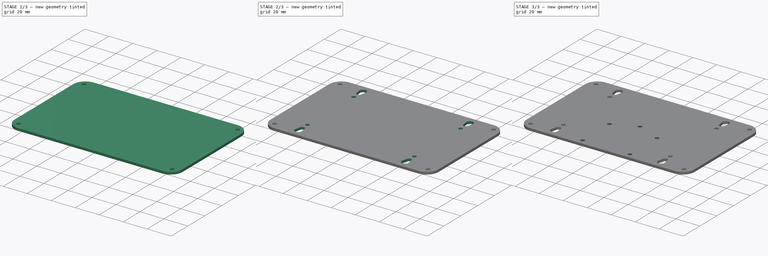
[diagram: build sequence overview — one tinted view per stage of 3, left to right]
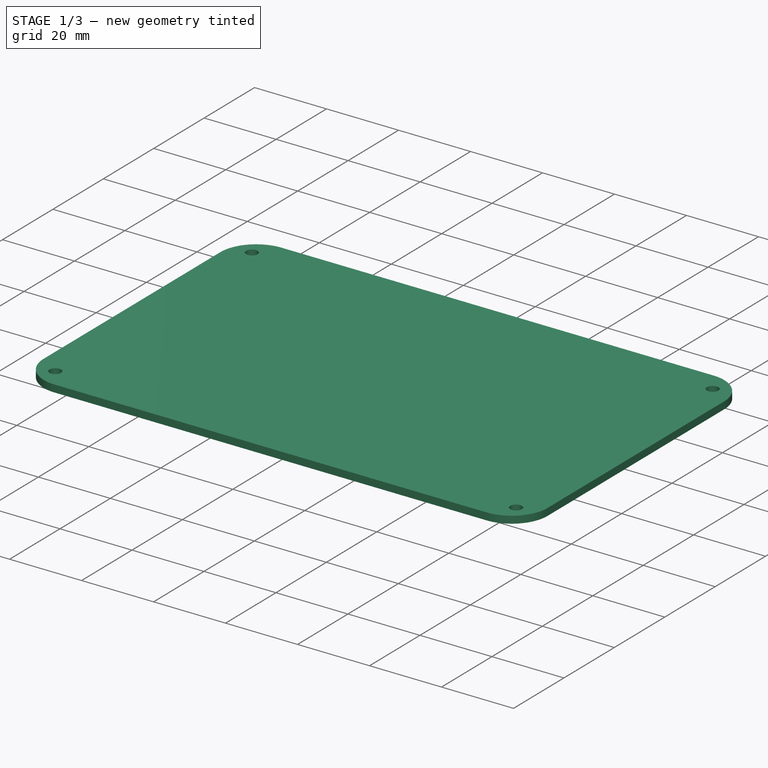
[diagram: stage 1 of 3 — iso view after this stage's code; geometry added in this stage tinted green]
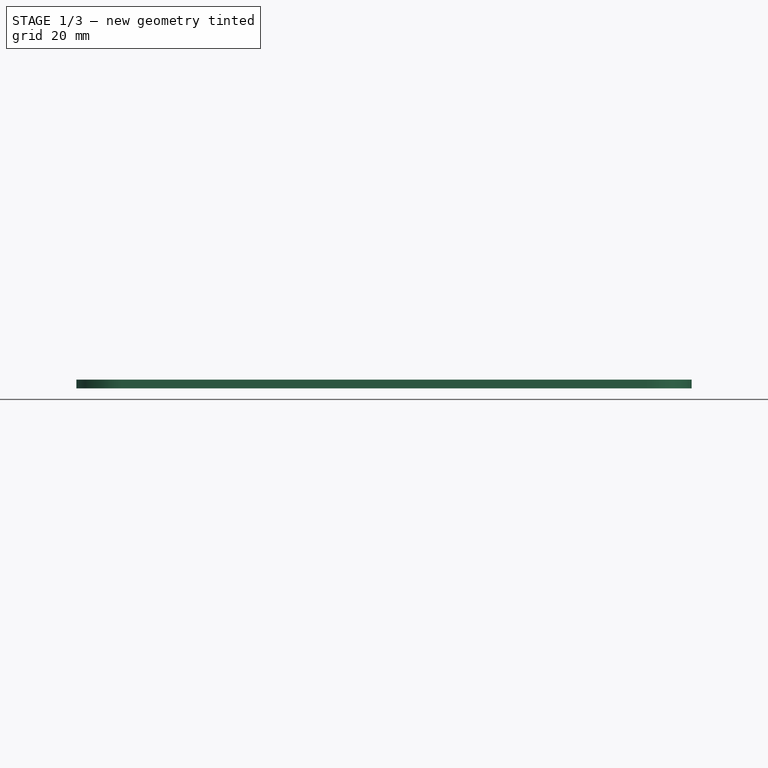
[diagram: stage 1 of 3 — front view after this stage's code; geometry added in this stage tinted green]
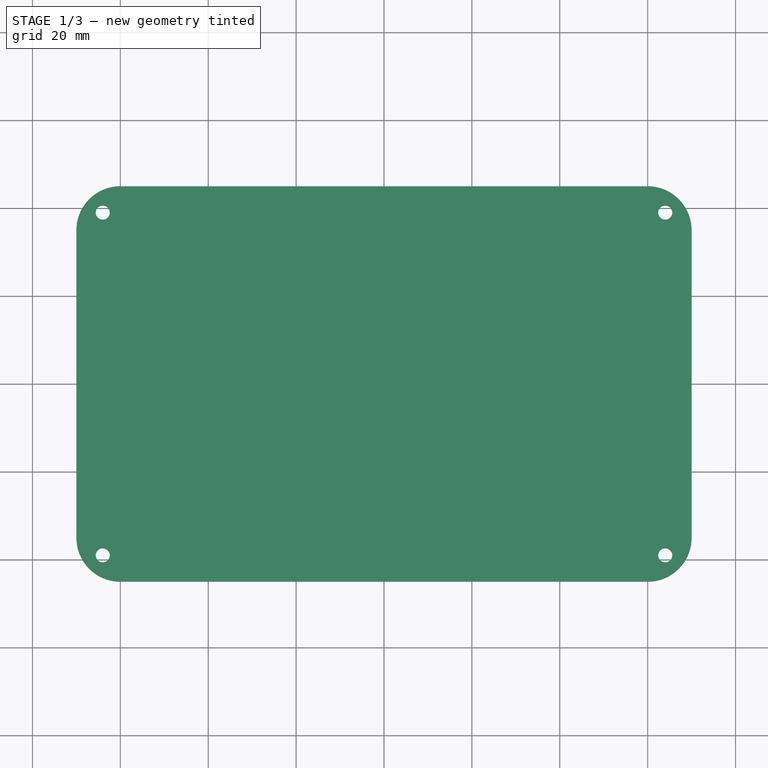
[diagram: stage 1 of 3 — top view after this stage's code; geometry added in this stage tinted green]
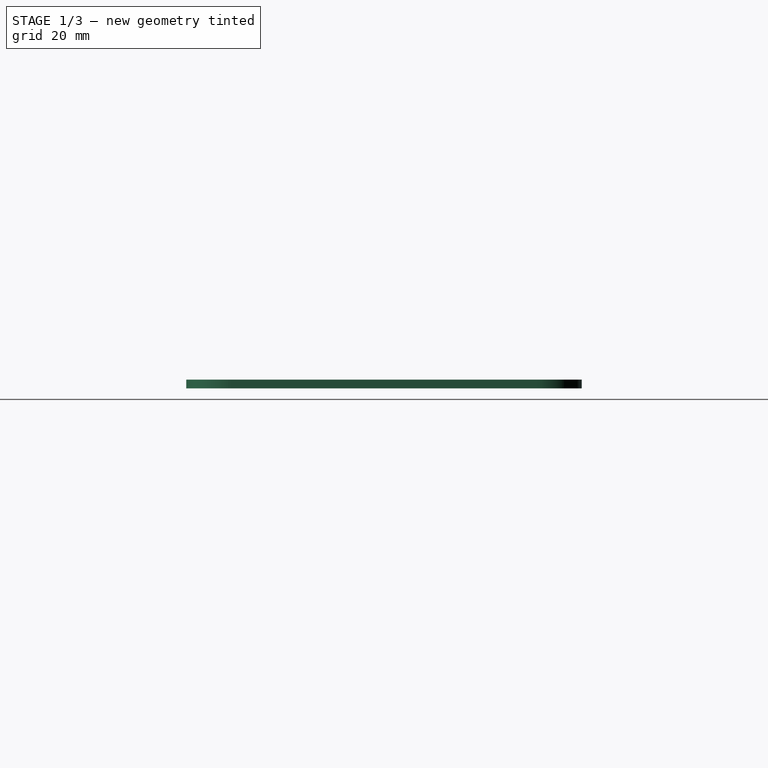
[diagram: stage 1 of 3 — right view after this stage's code; geometry added in this stage tinted green]
FCSTD DOCUMENT  (FreeCAD 0.21R33771 (Git))
Label: Everything_Controller_Backplate
License: All rights reserved
LicenseURL: http://en.wikipedia.org/wiki/All_rights_reserved
objects: Sketcher::SketchObject×3, PartDesign::Fillet×2, PartDesign::Pocket×2, Part::Feature×2, PartDesign::Pad×1, PartDesign::Body×1
note: 16 computed .brp shape members not serialized (recipe doc carries the construction recipe); baked Part::Feature solids carry a one-line shape summary decoded from their .brp

FEATURE [Sketcher::SketchObject] Sketch
  FullyConstrained = true
  MapMode = 5
  Support = -> [XY_Plane]
  sketch-geometry (8):
    g0: LineSegment StartX=-70 StartY=45 StartZ=0 EndX=70 EndY=45 EndZ=0
    g1: LineSegment StartX=70 StartY=45 StartZ=0 EndX=70 EndY=-45 EndZ=0
    g2: LineSegment StartX=70 StartY=-45 StartZ=0 EndX=-70 EndY=-45 EndZ=0
    g3: LineSegment StartX=-70 StartY=-45 StartZ=0 EndX=-70 EndY=45 EndZ=0
    g4: Circle CenterX=-64 CenterY=39 CenterZ=0 NormalX=0 NormalY=0 NormalZ=1 AngleXU=0 Radius=1.6
    g5: Circle CenterX=64 CenterY=39 CenterZ=0 NormalX=0 NormalY=0 NormalZ=1 AngleXU=0 Radius=1.6
    g6: Circle CenterX=64 CenterY=-39 CenterZ=0 NormalX=0 NormalY=0 NormalZ=1 AngleXU=0 Radius=1.6
    g7: Circle CenterX=-64 CenterY=-39 CenterZ=0 NormalX=0 NormalY=0 NormalZ=1 AngleXU=0 Radius=1.6
  constraints (24):
    c: Coincident(g0,g1)
    c: Coincident(g1,g2)
    c: Coincident(g2,g3)
    c: Coincident(g3,g0)
    c: Horizontal(g0)
    c: Horizontal(g2)
    c: Vertical(g1)
    c: Vertical(g3)
    c: DistanceX(g0,g0) = 140
    c: DistanceX(g0,g-1) = 70
    c: DistanceY(g1,g0) = 90
    c: DistanceY(g1,g-1) = 45
    c: Horizontal(g7,g6)
    c: Horizontal(g4,g5)
    c: Vertical(g4,g7)
    c: Vertical(g5,g6)
    c: Diameter(g5) = 3.2
    c: Equal(g5,g6)
    c: Equal(g6,g7)
    c: Equal(g7,g4)
    c: DistanceX(g0,g4) = 6
    c: DistanceX(g5,g0) = 6
    c: DistanceY(g4,g0) = 6
    c: DistanceY(g2,g7) = 6
FEATURE [PartDesign::Pad] Pad
  Direction = (0,0,1)
  Length = 2
  Length2 = 100
  Profile = -> Sketch
  Type = 0
FEATURE [PartDesign::Fillet] Fillet
  Base = -> Pad [Edge8,Edge5,Edge2,Edge1]
  BaseFeature = -> Pad
  Radius = 10
  SupportTransform = false
  UseAllEdges = false
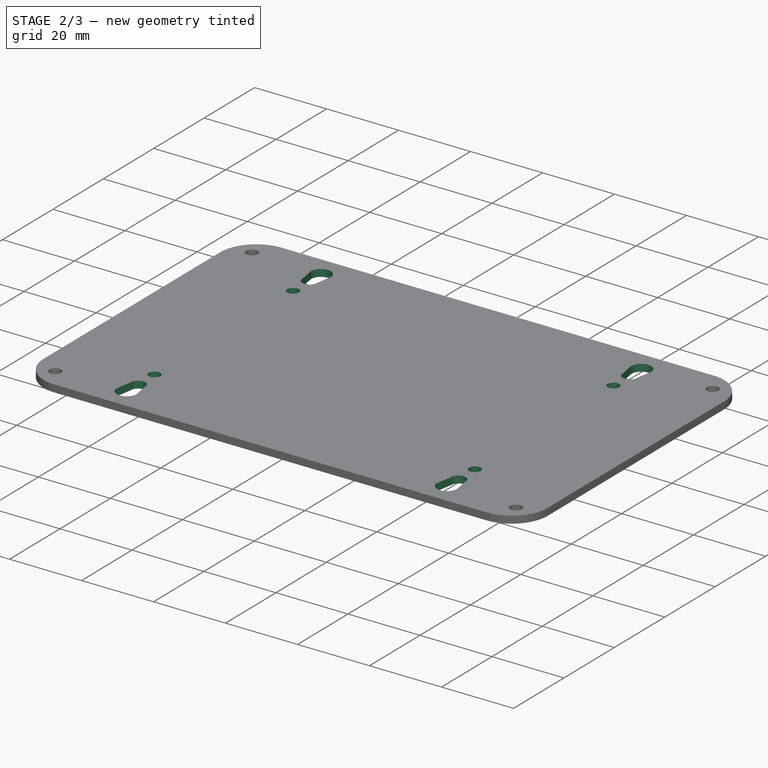
[diagram: stage 2 of 3 — iso view after this stage's code; geometry added in this stage tinted green]
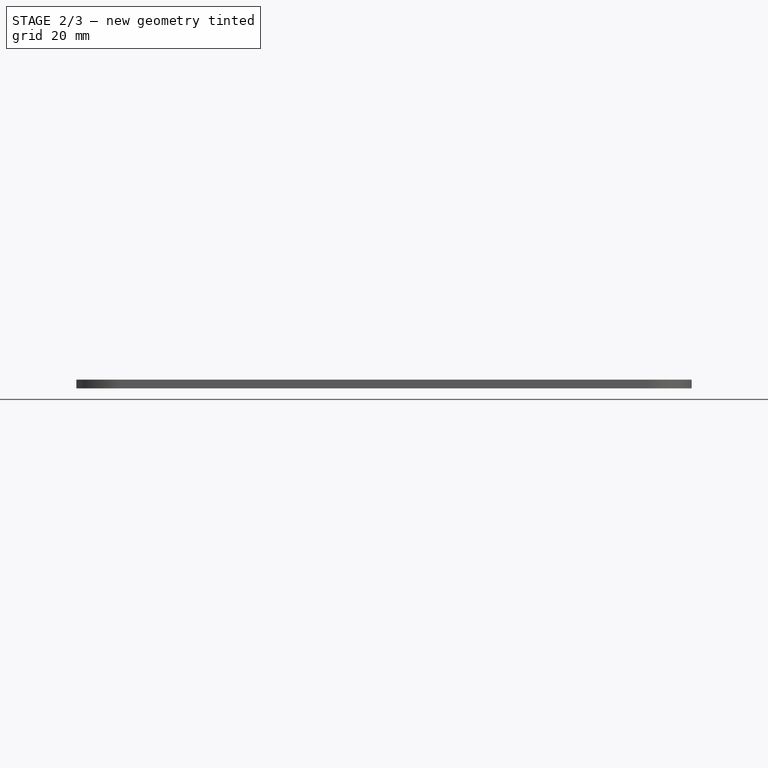
[diagram: stage 2 of 3 — front view after this stage's code; geometry added in this stage tinted green]
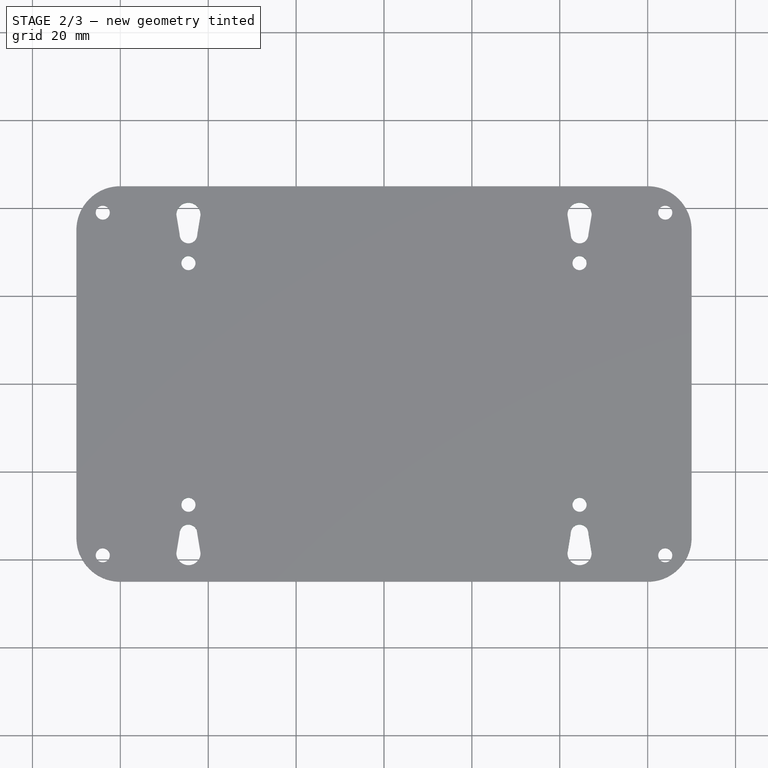
[diagram: stage 2 of 3 — top view after this stage's code; geometry added in this stage tinted green]
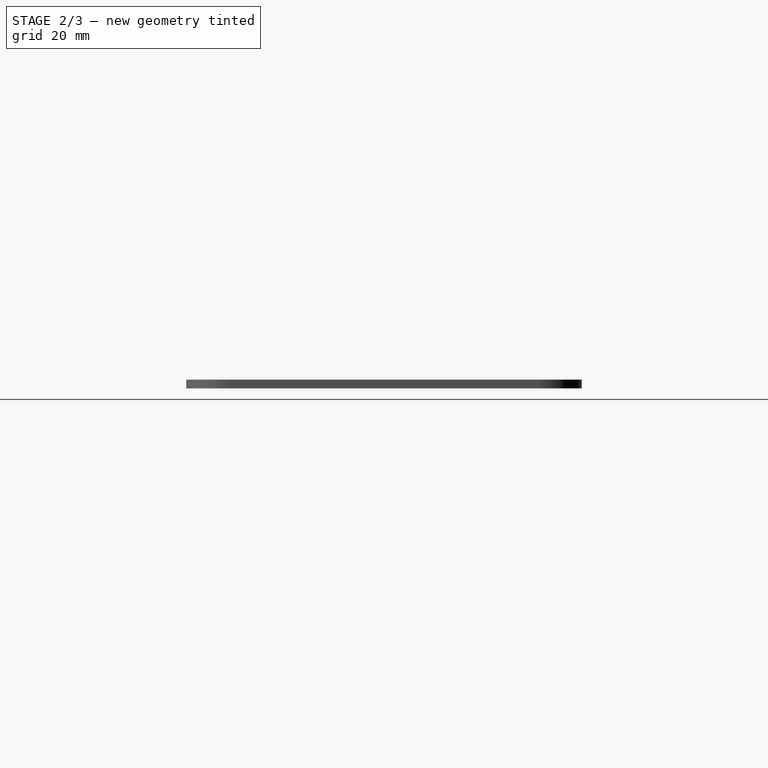
[diagram: stage 2 of 3 — right view after this stage's code; geometry added in this stage tinted green]
FEATURE [Sketcher::SketchObject] Sketch001
  ExternalGeometry = -> [Fillet]
  FullyConstrained = true
  MapMode = 5
  Placement = pos=(0,0,2) rot=(0,0,1;0rad)
  Support = -> [Fillet]
  sketch-geometry (29):
    g0: LineSegment StartX=-55 StartY=38.5 StartZ=0 EndX=-34 EndY=38.5 EndZ=0
    g1: LineSegment StartX=-34 StartY=38.5 StartZ=0 EndX=-34 EndY=-38.5 EndZ=0
    g2: LineSegment StartX=-34 StartY=-38.5 StartZ=0 EndX=-55 EndY=-38.5 EndZ=0
    g3: LineSegment StartX=-55 StartY=-38.5 StartZ=0 EndX=-55 EndY=38.5 EndZ=0
    g4: LineSegment StartX=34 StartY=38.5 StartZ=0 EndX=55 EndY=38.5 EndZ=0
    g5: LineSegment StartX=55 StartY=38.5 StartZ=0 EndX=55 EndY=-38.5 EndZ=0
    g6: LineSegment StartX=55 StartY=-38.5 StartZ=0 EndX=34 EndY=-38.5 EndZ=0
    g7: LineSegment StartX=34 StartY=-38.5 StartZ=0 EndX=34 EndY=38.5 EndZ=0
    g8: Circle CenterX=-44.5 CenterY=27.5 CenterZ=0 NormalX=0 NormalY=0 NormalZ=1 AngleXU=0 Radius=1.6
    g9: Circle CenterX=-44.5 CenterY=-27.5 CenterZ=0 NormalX=0 NormalY=0 NormalZ=1 AngleXU=0 Radius=1.6
    g10: Circle CenterX=44.5 CenterY=-27.5 CenterZ=0 NormalX=0 NormalY=0 NormalZ=1 AngleXU=0 Radius=1.6
    g11: Circle CenterX=44.5 CenterY=27.5 CenterZ=0 NormalX=0 NormalY=0 NormalZ=1 AngleXU=0 Radius=1.6
    g12: GeomPoint X=-44.5 Y=29.1 Z=0
    g13: ArcOfCircle CenterX=-44.5 CenterY=38.5 CenterZ=0 NormalX=0 NormalY=0 NormalZ=1 AngleXU=0 Radius=2.75 StartAngle=-1.8e-15 EndAngle=3.14159
    g14: ArcOfCircle CenterX=-44.5 CenterY=34 CenterZ=0 NormalX=0 NormalY=0 NormalZ=1 AngleXU=0 Radius=2 StartAngle=3.14159 EndAngle=6.28319
    g15: LineSegment StartX=-46.5 StartY=34 StartZ=0 EndX=-47.25 EndY=38.5 EndZ=0
    g16: LineSegment StartX=-42.5 StartY=34 StartZ=0 EndX=-41.75 EndY=38.5 EndZ=0
    g17: ArcOfCircle CenterX=-44.5 CenterY=-38.5 CenterZ=0 NormalX=0 NormalY=0 NormalZ=1 AngleXU=0 Radius=2.75 StartAngle=3.14159 EndAngle=6.28319
    g18: ArcOfCircle CenterX=-44.5 CenterY=-34 CenterZ=0 NormalX=0 NormalY=0 NormalZ=1 AngleXU=0 Radius=2 StartAngle=0 EndAngle=3.14159
    g19: LineSegment StartX=-41.75 StartY=-38.5 StartZ=0 EndX=-42.5 EndY=-34 EndZ=0
    g20: LineSegment StartX=-46.5 StartY=-34 StartZ=0 EndX=-47.25 EndY=-38.5 EndZ=0
    g21: LineSegment StartX=46.5 StartY=34 StartZ=0 EndX=47.25 EndY=38.5 EndZ=0
    g22: ArcOfCircle CenterX=44.5 CenterY=34 CenterZ=0 NormalX=0 NormalY=0 NormalZ=1 AngleXU=0 Radius=2 StartAngle=3.14159 EndAngle=6.28319
    g23: LineSegment StartX=42.5 StartY=34 StartZ=0 EndX=41.75 EndY=38.5 EndZ=0
    g24: ArcOfCircle CenterX=44.5 CenterY=38.5 CenterZ=0 NormalX=0 NormalY=0 NormalZ=1 AngleXU=0 Radius=2.75 StartAngle=0 EndAngle=3.14159
    g25: ArcOfCircle CenterX=44.5 CenterY=-34 CenterZ=0 NormalX=0 NormalY=0 NormalZ=1 AngleXU=0 Radius=2 StartAngle=0 EndAngle=3.14159
    g26: LineSegment StartX=47.25 StartY=-38.5 StartZ=0 EndX=46.5 EndY=-34 EndZ=0
    g27: ArcOfCircle CenterX=44.5 CenterY=-38.5 CenterZ=0 NormalX=0 NormalY=0 NormalZ=1 AngleXU=0 Radius=2.75 StartAngle=3.14159 EndAngle=6.28319
    g28: LineSegment StartX=42.5 StartY=-34 StartZ=0 EndX=41.75 EndY=-38.5 EndZ=0
  constraints (94):
    c: Coincident(g0,g1)
    c: Coincident(g1,g2)
    c: Coincident(g2,g3)
    c: Coincident(g3,g0)
    c: Horizontal(g0)
    c: Horizontal(g2)
    c: Vertical(g1)
    c: Vertical(g3)
    c: Coincident(g4,g5)
    c: Coincident(g5,g6)
    c: Coincident(g6,g7)
    c: Coincident(g7,g4)
    c: Horizontal(g4)
    c: Horizontal(g6)
    c: Vertical(g5)
    c: Vertical(g7)
    c: DistanceX(g0,g0) = 21
    c: DistanceX(g4,g4) = 21
    c: DistanceY(g1,g1) = 77
    c: DistanceY(g-1,g0) = 38.5
    c: Horizontal(g4,g0)
    c: Horizontal(g6,g1)
    c: DistanceX(g-3,g0) = 15
    c: DistanceX(g4,g-4) = 15
    c: Horizontal(g11,g8)
    c: Horizontal(g10,g9)
    c: Vertical(g8,g9)
    c: Vertical(g11,g10)
    c: Diameter(g11) = 3.2
    c: Equal(g11,g8)
    c: Equal(g8,g9)
    c: Equal(g9,g10)
    c: DistanceX(g4,g11) = 10.5
    c: DistanceX(g0,g8) = 10.5
    c: DistanceY(g10,g11) = 55
    c: DistanceY(g-1,g11) = 27.5
    c: PointOnObject(g12,g8)
    c: Vertical(g12,g8)
    c: PointOnObject(g13,g0)
    c: PointOnObject(g13,g0)
    c: PointOnObject(g13,g0)
    c: Diameter(g13) = 5.5
    c: Vertical(g13,g8)
    c: Coincident(g15,g14)
    c: Coincident(g15,g13)
    c: Coincident(g16,g14)
    c: Coincident(g16,g13)
    c: Vertical(g14,g13)
    c: Horizontal(g14,g14)
    c: Horizontal(g14,g14)
    c: Diameter(g14) = 4
    c: DistanceY(g14,g13) = 4.5
    c: PointOnObject(g17,g2)
    c: PointOnObject(g17,g2)
    c: PointOnObject(g17,g2)
    c: Horizontal(g18,g18)
    c: Horizontal(g18,g18)
    c: Vertical(g18,g17)
    c: Vertical(g17,g9)
    c: Coincident(g19,g17)
    c: Coincident(g19,g18)
    c: Coincident(g20,g18)
    c: Coincident(g20,g17)
    c: Diameter(g17) = 5.5
    c: Diameter(g18) = 4
    c: DistanceY(g17,g18) = 4.5
    c: Equal(g13,g24) = 5.5
    c: Coincident(g23,g22)
    c: Coincident(g23,g24)
    c: Coincident(g21,g22)
    c: Coincident(g21,g24)
    c: Vertical(g22,g24)
    c: Horizontal(g22,g22)
    c: Horizontal(g22,g22)
    c: Equal(g14,g22) = 4
    c: DistanceY(g22,g24) = 4.5
    c: Horizontal(g25,g25)
    c: Horizontal(g25,g25)
    c: Vertical(g25,g27)
    c: Coincident(g26,g27)
    c: Coincident(g26,g25)
    c: Coincident(g28,g25)
    c: Coincident(g28,g27)
    c: Equal(g17,g27) = 5.5
    c: Equal(g18,g25) = 4
    c: DistanceY(g27,g25) = 4.5
    c: PointOnObject(g27,g6)
    c: Vertical(g27,g10)
    c: Horizontal(g26,g27)
    c: Horizontal(g27,g27)
    c: Horizontal(g24,g23)
    c: Horizontal(g23,g21)
    c: PointOnObject(g24,g4)
    c: Vertical(g24,g11)
FEATURE [PartDesign::Pocket] Pocket
  BaseFeature = -> Fillet
  Direction = (0,0,-1)
  Length = 2
  Length2 = 100
  Profile = -> Sketch001
  Type = 0
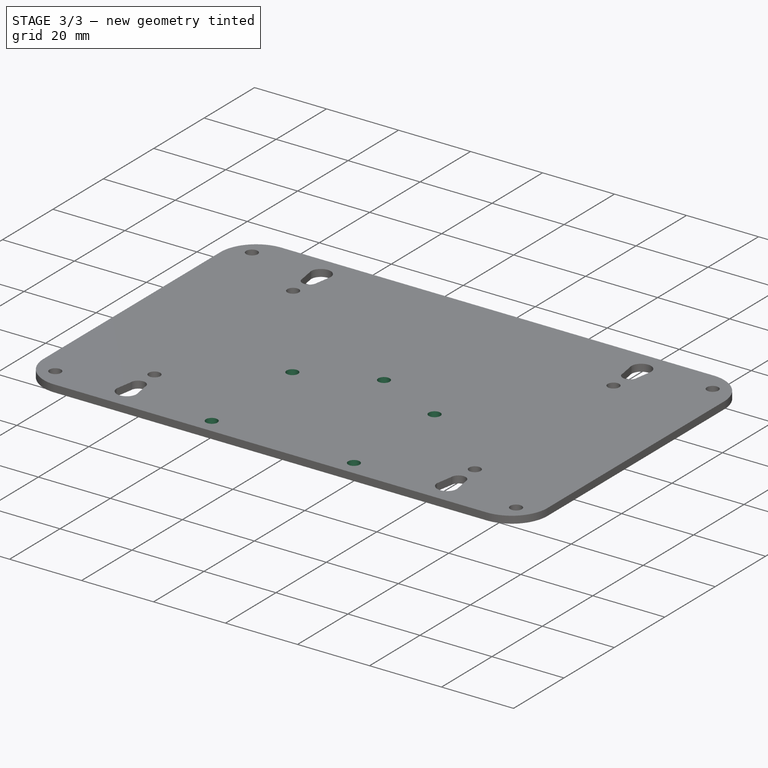
[diagram: stage 3 of 3 — iso view after this stage's code; geometry added in this stage tinted green]
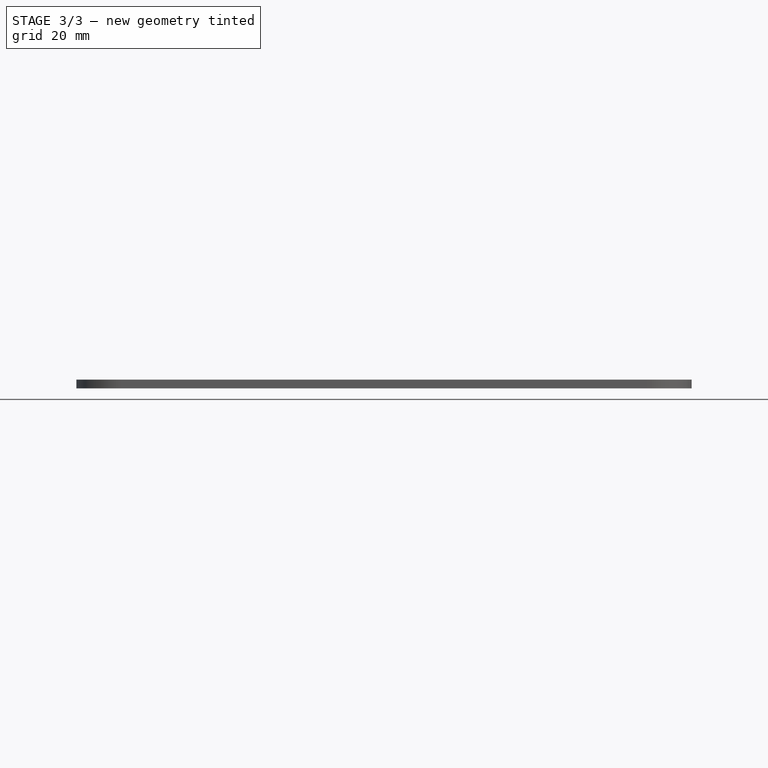
[diagram: stage 3 of 3 — front view after this stage's code; geometry added in this stage tinted green]
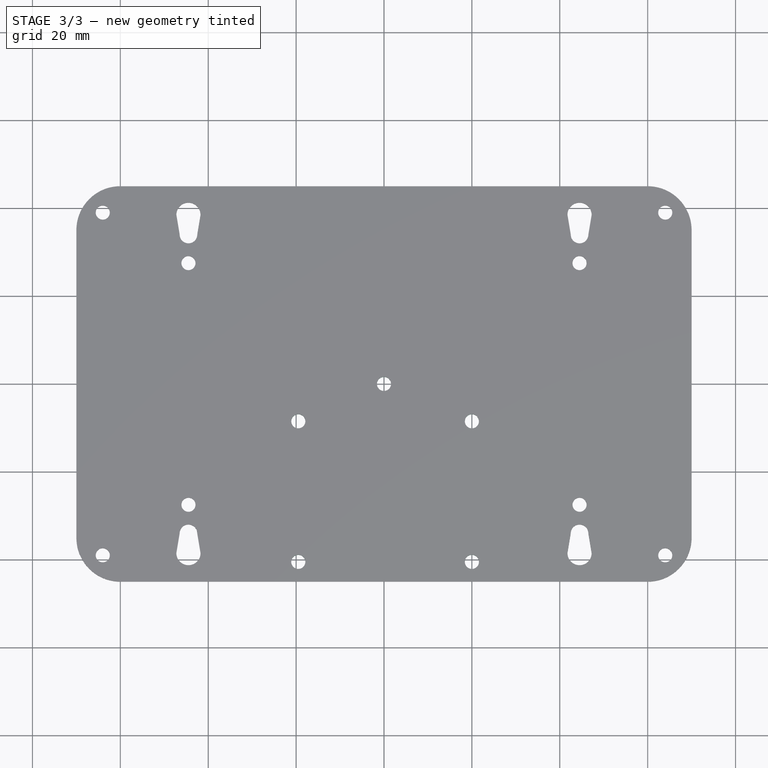
[diagram: stage 3 of 3 — top view after this stage's code; geometry added in this stage tinted green]
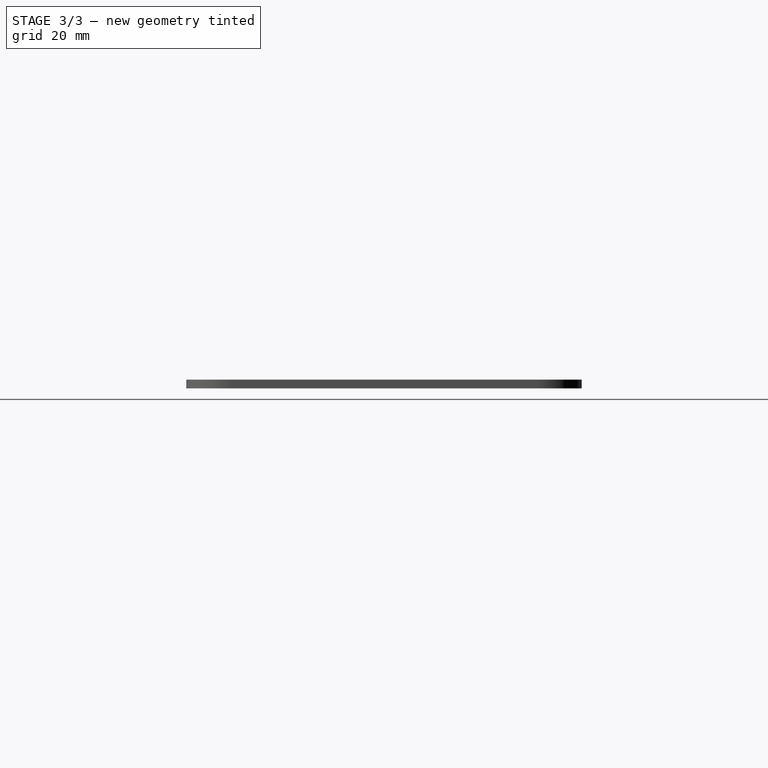
[diagram: stage 3 of 3 — right view after this stage's code; geometry added in this stage tinted green]
FEATURE [Part::Feature] Feature  label="Hold_18650-1p"
  Placement = pos=(-44.5,0,2) rot=(0,0,1;0rad)
  shape: bbox 20 x 78 x 25.5 mm, 134 faces, 3 solids (baked)
FEATURE [Part::Feature] Feature001  label="Hold_18650-1p001"
  Placement = pos=(44.5,0,2) rot=(0,0,1;0rad)
  shape: bbox 20 x 78 x 25.5 mm, 134 faces, 3 solids (baked)
FEATURE [PartDesign::Fillet] Fillet001
  Base = -> Pocket [Edge80,Edge79,Edge81,Edge82,Edge74,Edge75,Edge76,Edge77,Edge87,Edge89,Edge94,Edge95,Edge92,Edge93,Edge88,Edge90]
  BaseFeature = -> Pocket
  Radius = 1
  SupportTransform = false
  UseAllEdges = false
FEATURE [Sketcher::SketchObject] Sketch002
  ExternalGeometry = -> [Fillet001]
  FullyConstrained = true
  MapMode = 5
  Placement = pos=(0,0,2) rot=(0,0,1;0rad)
  Support = -> [Fillet001]
  sketch-geometry (5):
    g0: Circle CenterX=-19.5 CenterY=-40.5 CenterZ=0 NormalX=0 NormalY=0 NormalZ=1 AngleXU=0 Radius=1.6
    g1: Circle CenterX=20 CenterY=-40.5 CenterZ=0 NormalX=0 NormalY=0 NormalZ=1 AngleXU=0 Radius=1.6
    g2: Circle CenterX=20 CenterY=-8.5 CenterZ=0 NormalX=0 NormalY=0 NormalZ=1 AngleXU=0 Radius=1.6
    g3: Circle CenterX=-19.5 CenterY=-8.5 CenterZ=0 NormalX=0 NormalY=0 NormalZ=1 AngleXU=0 Radius=1.6
    g4: Circle CenterX=0 CenterY=0 CenterZ=0 NormalX=0 NormalY=0 NormalZ=1 AngleXU=0 Radius=1.6
  constraints (14):
    c: Horizontal(g2,g3)
    c: Horizontal(g0,g1)
    c: Vertical(g3,g0)
    c: Vertical(g1,g2)
    c: Diameter(g3) = 3.2
    c: Equal(g3,g2)
    c: Equal(g2,g1)
    c: Equal(g1,g0)
    c: DistanceX(g3,g2) = 39.5
    c: DistanceY(g1,g2) = 32
    c: DistanceX(g3,g-1) = 19.5
    c: DistanceY(g-3,g1) = 4.5
    c: Coincident(g4,g-1)
    c: Diameter(g4) = 3.2
FEATURE [PartDesign::Pocket] Pocket001
  BaseFeature = -> Fillet001
  Direction = (0,0,-1)
  Length = 5
  Length2 = 5
  Profile = -> Sketch002
  ReferenceAxis = -> Sketch002 [N_Axis]
  Type = 0
FEATURE [PartDesign::Body] Body
  Group = -> [Sketch,Pad,Fillet,Sketch001,Pocket,Fillet001,Sketch002,Pocket001]
  Origin = -> Origin
  Tip = -> Pocket001
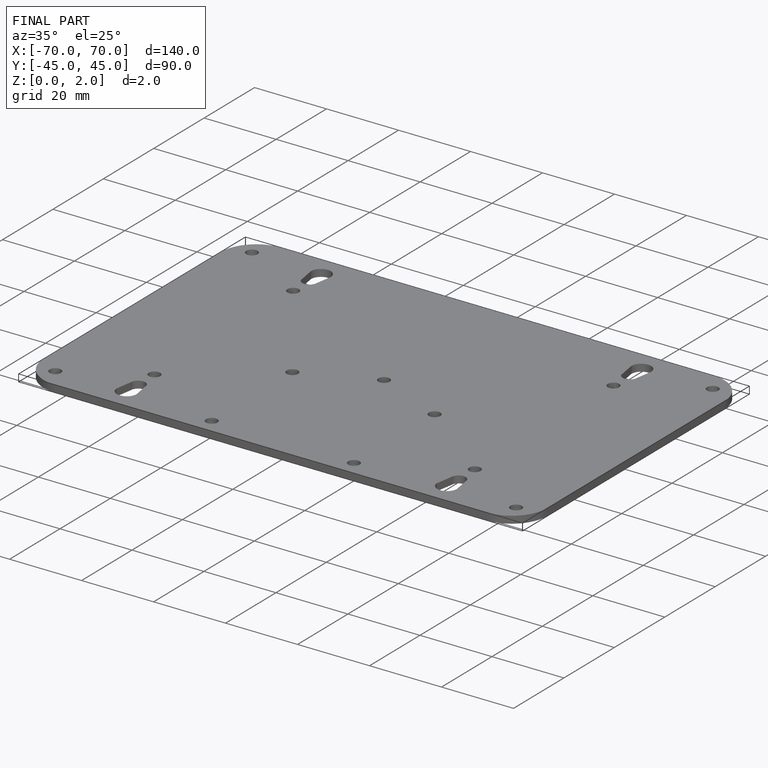
[diagram: finished part — iso view with bounding-box wireframe]
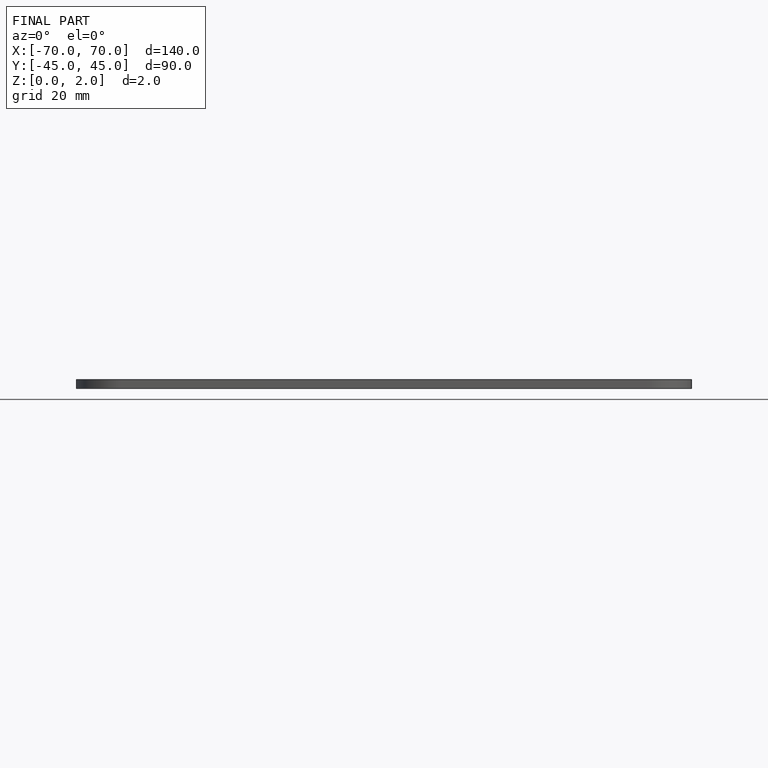
[diagram: finished part — front view with bounding-box wireframe]
